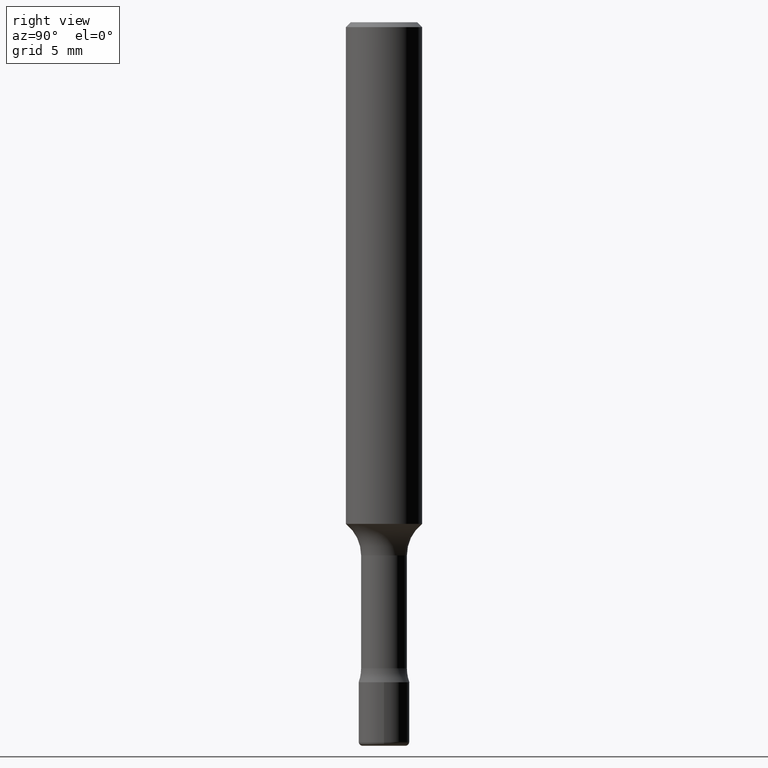
[diagram: clean part render]
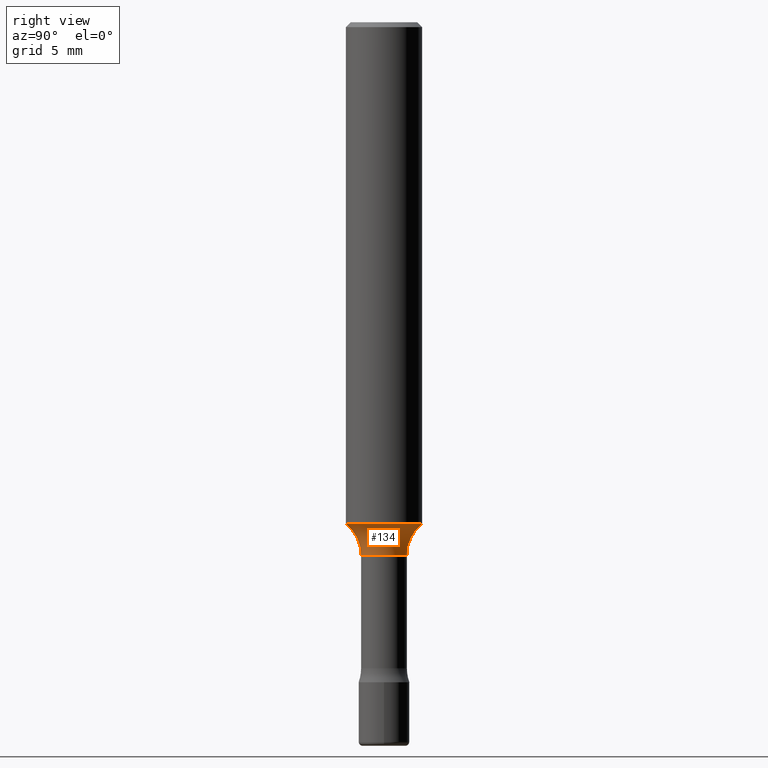
[diagram: same view with one face highlighted and labeled with its STEP entity id]
A machine part, right view. The second image highlights one B-rep face of the part: STEP entity #134.
In plain terms, the highlighted toroidal blend (fillet) surface has major radius 4.9784 mm and minor (blend) radius 3.175 mm.
Its self-contained STEP definition (entity closure, byte-faithful):
#2 = CARTESIAN_POINT ( 'NONE',  ( -4.957903501156845310E-16, -0.07100000000000578071, -1.653499999999999748 ) ) ;
#9 = CARTESIAN_POINT ( 'NONE',  ( 4.042623480343631628E-29, -5.774538009429644609E-15, -1.653499999999999970 ) ) ;
#18 = DIRECTION ( 'NONE',  ( 7.105427357600999492E-15, 1.000000000000000000, 0.000000000000000000 ) ) ;
#19 = ORIENTED_EDGE ( 'NONE', *, *, #286, .F. ) ;
#23 = CARTESIAN_POINT ( 'NONE',  ( 1.392663762089836453E-15, 0.1959999999999942066, -1.653500000000000858 ) ) ;
#25 = DIRECTION ( 'NONE',  ( -1.000000000000000000, 6.982962677686265922E-15, -4.883557194083112340E-29 ) ) ;
#27 = CARTESIAN_POINT ( 'NONE',  ( 3.803616507154480473E-29, -5.433137219098765341E-15, -1.555742187013006372 ) ) ;
#28 = ORIENTED_EDGE ( 'NONE', *, *, #212, .T. ) ;
#59 = AXIS2_PLACEMENT_3D ( 'NONE', #9, #445, #326 ) ;
#66 = DIRECTION ( 'NONE',  ( 1.000000000000000000, -7.105427357601001070E-15, 4.926325682077081619E-29 ) ) ;
#118 = VERTEX_POINT ( 'NONE', #275 ) ;
#134 = ADVANCED_FACE ( 'NONE', ( #475 ), #175, .F. ) ;
#139 = DIRECTION ( 'NONE',  ( -2.444888709007337080E-29, 3.492312071018835321E-15, 1.000000000000000000 ) ) ;
#149 = ORIENTED_EDGE ( 'NONE', *, *, #215, .F. ) ;
#160 = VERTEX_POINT ( 'NONE', #321 ) ;
#175 = TOROIDAL_SURFACE ( 'NONE', #245, 0.1959999999999999798, 0.1250000000000000000 ) ;
#182 = CARTESIAN_POINT ( 'NONE',  ( -1.368660684826467278E-15, -0.1960000000000057530, -1.653499999999999082 ) ) ;
#193 = VERTEX_POINT ( 'NONE', #238 ) ;
#212 = EDGE_CURVE ( 'NONE', #118, #504, #345, .T. ) ;
#215 = EDGE_CURVE ( 'NONE', #160, #193, #364, .T. ) ;
#238 = CARTESIAN_POINT ( 'NONE',  ( 6.718181566612139372E-16, 0.07099999999999423439, -1.653500000000000192 ) ) ;
#245 = AXIS2_PLACEMENT_3D ( 'NONE', #282, #313, #442 ) ;
#263 = AXIS2_PLACEMENT_3D ( 'NONE', #27, #139, #465 ) ;
#265 = AXIS2_PLACEMENT_3D ( 'NONE', #23, #66, #18 ) ;
#275 = CARTESIAN_POINT ( 'NONE',  ( -8.246878922347099042E-16, -0.1181000000000054229, -1.555742187013005928 ) ) ;
#282 = CARTESIAN_POINT ( 'NONE',  ( 4.043582671027123201E-29, -5.773164393777141072E-15, -1.653499999999999970 ) ) ;
#286 = EDGE_CURVE ( 'NONE', #118, #160, #489, .T. ) ;
#313 = DIRECTION ( 'NONE',  ( -2.444888709007337080E-29, 3.492312071018835321E-15, 1.000000000000000000 ) ) ;
#321 = CARTESIAN_POINT ( 'NONE',  ( 8.391509709327163582E-16, 0.1180999999999945704, -1.555742187013007038 ) ) ;
#326 = DIRECTION ( 'NONE',  ( -6.982962677686265922E-15, -1.000000000000000000, 3.847673230513046609E-15 ) ) ;
#337 = CIRCLE ( 'NONE', #59, 0.07100000000000000755 ) ;
#345 = CIRCLE ( 'NONE', #491, 0.1250000000000000000 ) ;
#364 = CIRCLE ( 'NONE', #265, 0.1250000000000000000 ) ;
#366 = EDGE_LOOP ( 'NONE', ( #149, #19, #28, #443 ) ) ;
#390 = DIRECTION ( 'NONE',  ( -6.982962677686266711E-15, -1.000000000000000000, 0.000000000000000000 ) ) ;
#442 = DIRECTION ( 'NONE',  ( -6.982962677686265922E-15, -1.000000000000000000, 3.492312071018835321E-15 ) ) ;
#443 = ORIENTED_EDGE ( 'NONE', *, *, #508, .T. ) ;
#445 = DIRECTION ( 'NONE',  ( -2.444888709007337080E-29, 3.492312071018835321E-15, 1.000000000000000000 ) ) ;
#465 = DIRECTION ( 'NONE',  ( -6.982962677686265922E-15, -1.000000000000000000, 4.626330217890369336E-15 ) ) ;
#475 = FACE_OUTER_BOUND ( 'NONE', #366, .T. ) ;
#489 = CIRCLE ( 'NONE', #263, 0.1180999999999999966 ) ;
#491 = AXIS2_PLACEMENT_3D ( 'NONE', #182, #25, #390 ) ;
#504 = VERTEX_POINT ( 'NONE', #2 ) ;
#508 = EDGE_CURVE ( 'NONE', #504, #193, #337, .T. ) ;